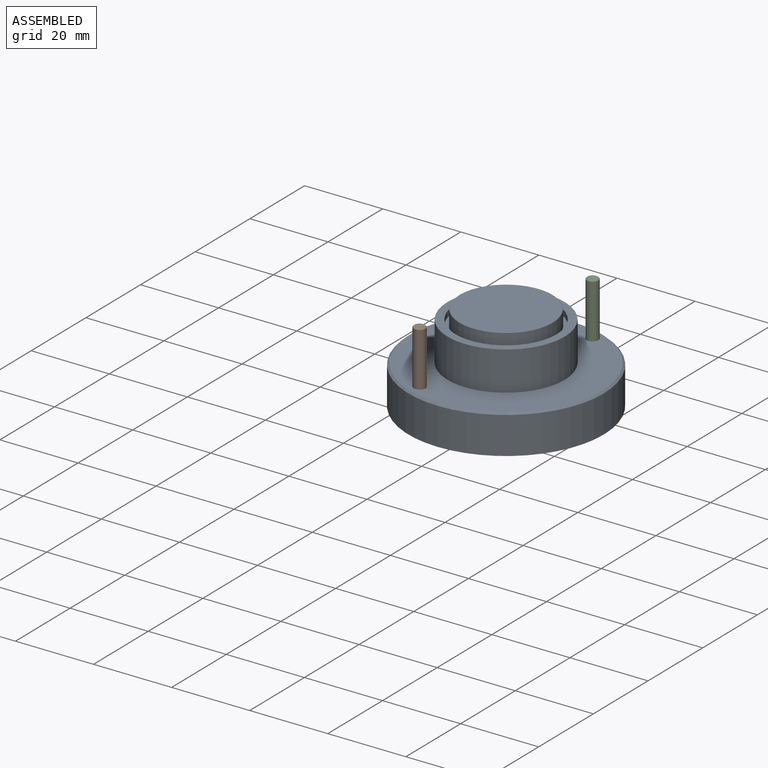
[diagram: assembled view]
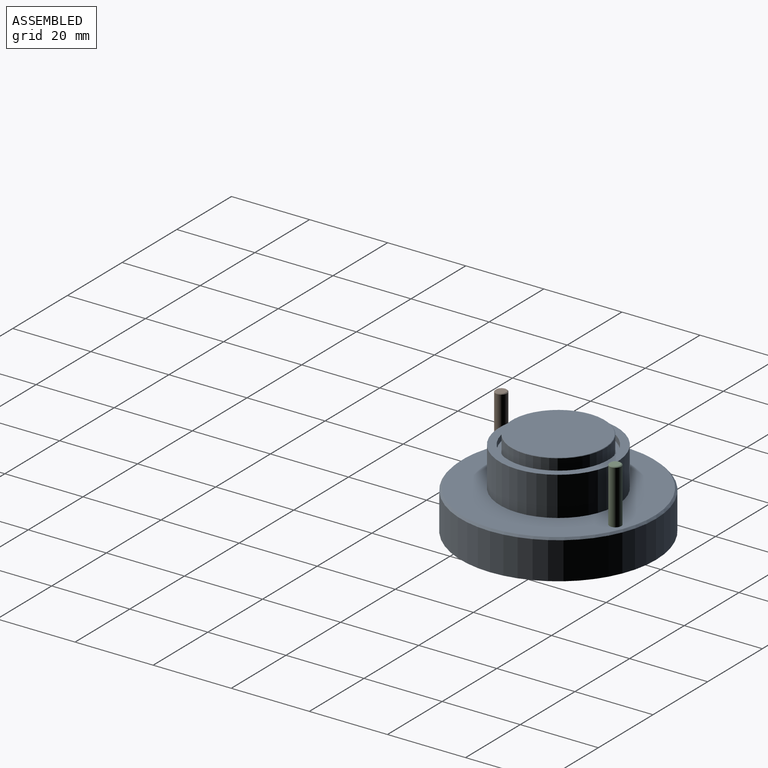
[diagram: assembled view, second angle]
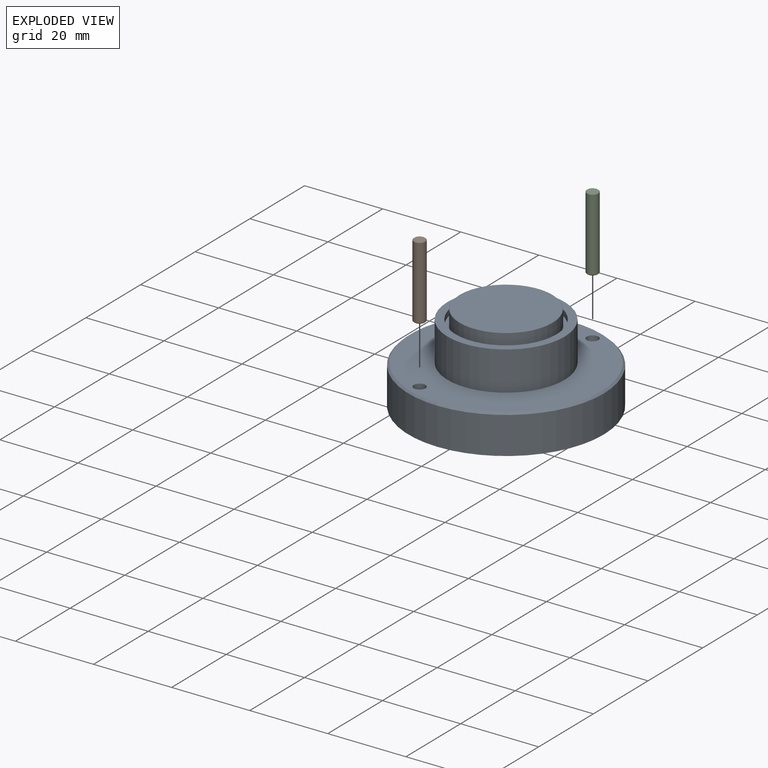
[diagram: exploded view]
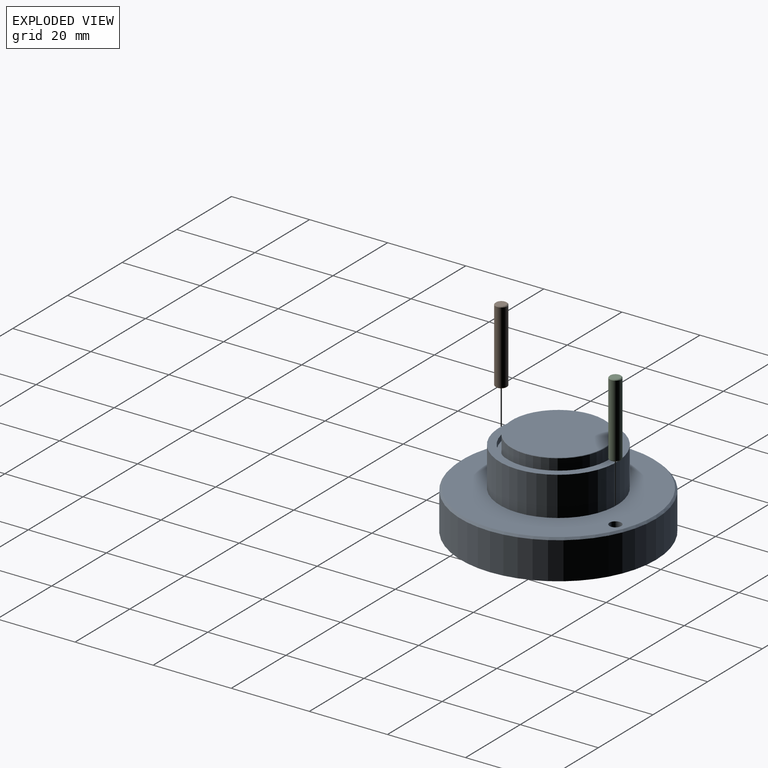
[diagram: exploded view, second angle]
ASSEMBLY  parts=3 mates=2
PART A: 15 faces, bbox 50x50x22.5 mm
  f0: cylinder r=25mm len=50mm, axis (0,0,1), area 1492.3mm2, adj f1,f10
  f1: plane 50x50mm, normal (0,0,-1), area 1963.5mm2, adj f0
  f2: plane 49x49mm, normal (0,0,1), area 1164.7mm2, adj f3,f10,f11,f13
  f3: cylinder r=15mm len=30mm, axis (0,0,-1), area 942.5mm2, adj f2,f4
  f4: plane 30x30mm, normal (0,0,1), area 179.2mm2, adj f3,f5
  f5: cylinder r=12.96mm len=25.92mm, axis (0,0,1), area 122.1mm2, adj f4,f6
  f6: plane 25.92x25.92mm, normal (0,0,1), area 78.3mm2, adj f5,f8
  f7: plane 23.72x23.72mm, normal (0,0,1), area 441.9mm2, adj f9
  f8: cylinder r=11.96mm len=23.92mm, axis (0,0,-1), area 293.1mm2, adj f6,f9
  f9: cone r=11.86mm half-angle=45deg, axis (0,0,-1), area 10.6mm2, adj f7,f8
  f10: cone r=24.5mm half-angle=45deg, axis (0,0,-1), area 110mm2, adj f0,f2
  f11: cylinder r=1.5mm len=5mm, axis (0,0,1), area 47.1mm2, adj f2,f12
  f12: plane 3x3mm, normal (0,0,1), area 7.1mm2, adj f11
  f13: cylinder r=1.5mm len=5mm, axis (0,0,1), area 47.1mm2, adj f2,f14
  f14: plane 3x3mm, normal (0,0,1), area 7.1mm2, adj f13
PART B: 5 faces, bbox 3x3x19 mm
  f0: cylinder r=1.5mm len=18.6mm, axis (0,0,-1), area 175.3mm2, adj f3,f4
  f1: plane 2.6x2.6mm, normal (0,0,1), area 5.3mm2, adj f4
  f2: plane 2.6x2.6mm, normal (0,0,-1), area 5.3mm2, adj f3
  f3: cone r=1.5mm half-angle=45deg, axis (0,0,1), area 2.5mm2, adj f0,f2
  f4: cone r=1.3mm half-angle=45deg, axis (0,0,-1), area 2.5mm2, adj f0,f1
PART C: same geometry as B
PLACE A t=(-5.51,-26.53,12.91)mm fixed
PLACE B t=(-29.34,-27.39,7.91)mm
PLACE C t=(-13.34,13.04,7.91)mm
MATE fastened A.f13 <-> C.f0  axis (0,0,1) through (-13.34,13.04,12.91)mm
MATE fastened A.f11 <-> B.f0  axis (0,0,1) through (-29.34,-27.39,12.91)mm
